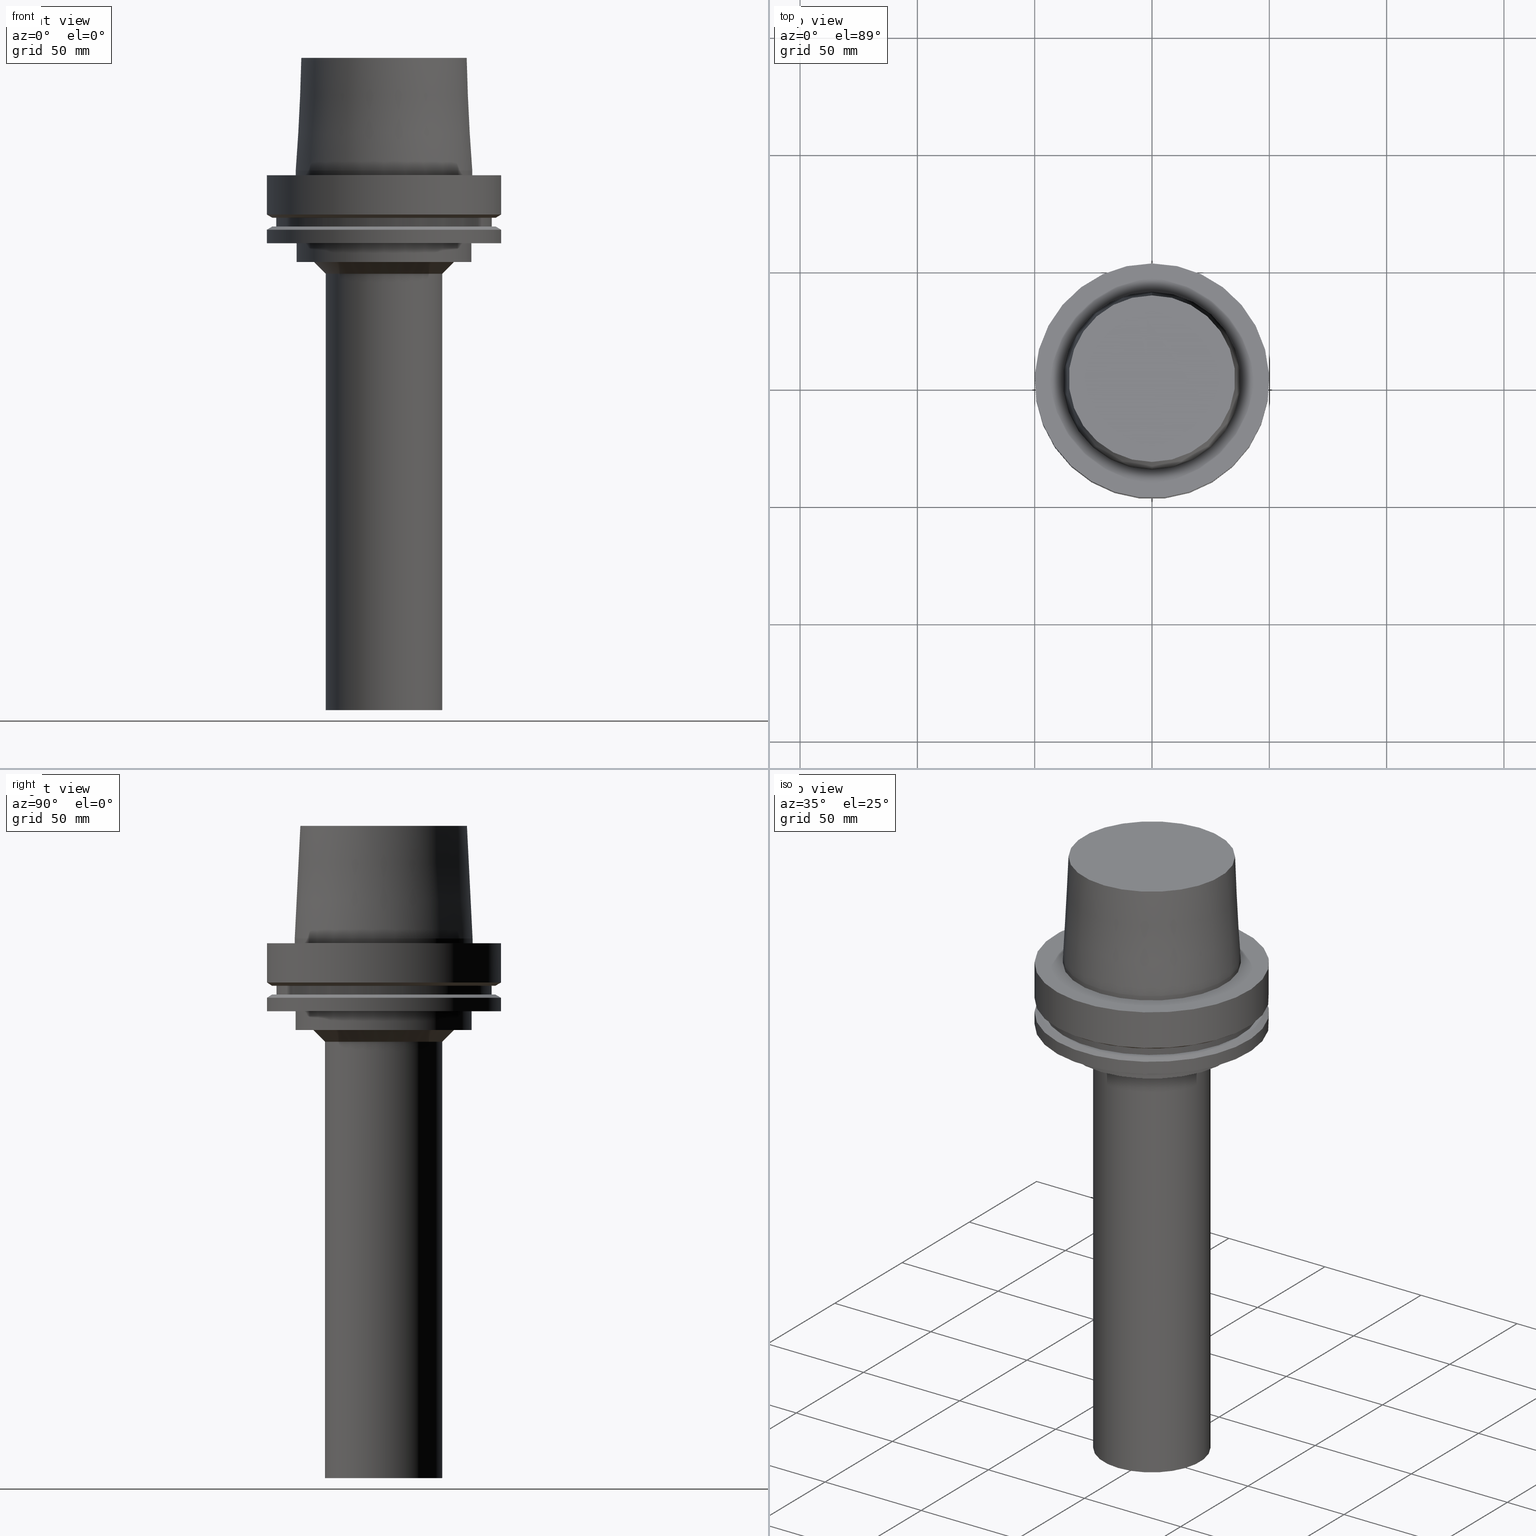
[diagram: canonical four-view strip — front | top / right | iso, engineering-drawing reading convention]
A machine part, canonical four-view strip (front | top / right | iso — engineering-drawing reading convention). The complete STEP part file that produces these views, byte-faithful:
ISO-10303-21;
HEADER;
FILE_DESCRIPTION((''),'1');
FILE_NAME('W:/Translate/00_BIG-HP\X2\FF71FF6FFF8CFF9F\X0\2013/HSK-A100-CK5-228.stp','2013-11-15T06:52:27',(''),(''),'Spatial Interop R18','Kubotek KeyCreator V8.5.1 (14335)',' ');
FILE_SCHEMA(('CONFIG_CONTROL_DESIGN'));
ENDSEC;
DATA;
#1=DESIGN_CONTEXT('',#27,'design');
#2=APPLICATION_PROTOCOL_DEFINITION('INTERNATIONAL STANDARD','config_control_design',1994,#27);
#3=PRODUCT_CATEGORY_RELATIONSHIP('NONE','NONE',#28,#29);
#4=DATE_AND_TIME(#30,#31);
#5=DATE_TIME_ROLE('creation_date');
#6=DATE_TIME_ROLE('classification_date');
#7=PERSON_AND_ORGANIZATION_ROLE('creator');
#8=PERSON_AND_ORGANIZATION_ROLE('design_supplier');
#9=PERSON_AND_ORGANIZATION_ROLE('classification_officer');
#10=PERSON_AND_ORGANIZATION_ROLE('design_owner');
#11=APPROVAL_PERSON_ORGANIZATION(#32,#33,#34);
#12=APPROVAL_DATE_TIME(#4,#33);
#13=CC_DESIGN_APPROVAL(#33,(#35,#36,#37));
#14=CC_DESIGN_DATE_AND_TIME_ASSIGNMENT(#4,#5,(#37));
#15=CC_DESIGN_DATE_AND_TIME_ASSIGNMENT(#4,#6,(#35));
#16=CC_DESIGN_PERSON_AND_ORGANIZATION_ASSIGNMENT(#32,#10,(#38));
#17=CC_DESIGN_PERSON_AND_ORGANIZATION_ASSIGNMENT(#32,#7,(#37));
#18=CC_DESIGN_PERSON_AND_ORGANIZATION_ASSIGNMENT(#32,#7,(#36));
#19=CC_DESIGN_PERSON_AND_ORGANIZATION_ASSIGNMENT(#32,#8,(#36));
#20=CC_DESIGN_SECURITY_CLASSIFICATION(#35,(#36));
#21=CC_DESIGN_PERSON_AND_ORGANIZATION_ASSIGNMENT(#32,#9,(#35));
#22=SHAPE_DEFINITION_REPRESENTATION(#39,#40);
#23= (GEOMETRIC_REPRESENTATION_CONTEXT(3)GLOBAL_UNCERTAINTY_ASSIGNED_CONTEXT((#43))GLOBAL_UNIT_ASSIGNED_CONTEXT((#45,#46,#47))REPRESENTATION_CONTEXT('NONE','WORKSPACE'));
#27=APPLICATION_CONTEXT('CONFIGURATION CONTROLLED 3D DESIGNS OF MECHANICAL PARTS AND ASSEMBLIES');
#28=PRODUCT_CATEGORY('part','NONE');
#29=PRODUCT_RELATED_PRODUCT_CATEGORY('detail',' ',(#38));
#30=CALENDAR_DATE(2013,15,10);
#31=LOCAL_TIME(15,52,27.0,#49);
#32=PERSON_AND_ORGANIZATION(#50,#51);
#33=APPROVAL(#52,'SOLID MODEL');
#34=APPROVAL_ROLE('APPROVED');
#35=SECURITY_CLASSIFICATION('','',#53);
#36=PRODUCT_DEFINITION_FORMATION_WITH_SPECIFIED_SOURCE(' ','NONE',#38,.NOT_KNOWN.);
#37=PRODUCT_DEFINITION('NONE','NONE',#36,#1);
#38=PRODUCT('1','1','PART-1-DESC',(#54));
#39=PRODUCT_DEFINITION_SHAPE('NONE','NONE',#37);
#40=ADVANCED_BREP_SHAPE_REPRESENTATION('1',(#55,#56),#23);
#43=UNCERTAINTY_MEASURE_WITH_UNIT(LENGTH_MEASURE(1.0E-006),#45,'','');
#45= (CONVERSION_BASED_UNIT('MILLIMETRE',#59)LENGTH_UNIT()NAMED_UNIT(#62));
#46= (NAMED_UNIT(#64)PLANE_ANGLE_UNIT()SI_UNIT($,.RADIAN.));
#47= (NAMED_UNIT(#64)SOLID_ANGLE_UNIT()SI_UNIT($,.STERADIAN.));
#49=COORDINATED_UNIVERSAL_TIME_OFFSET(9,0,.AHEAD.);
#50=PERSON('','UNSPECIFIED',$,$,$,$);
#51=ORGANIZATION('UNSPECIFIED','UNSPECIFIED','UNSPECIFIED');
#52=APPROVAL_STATUS('approved');
#53=SECURITY_CLASSIFICATION_LEVEL('unclassified');
#54=MECHANICAL_CONTEXT('',#27,'mechanical');
#55=MANIFOLD_SOLID_BREP('1',#70);
#56=AXIS2_PLACEMENT_3D('',#71,#72,#73);
#59=LENGTH_MEASURE_WITH_UNIT(LENGTH_MEASURE(1.0),#74);
#62=DIMENSIONAL_EXPONENTS(1.0,0.0,0.0,0.0,0.0,0.0,0.0);
#64=DIMENSIONAL_EXPONENTS(0.0,0.0,0.0,0.0,0.0,0.0,0.0);
#70=CLOSED_SHELL('',(#75,#76,#77,#78,#79,#80,#81,#82,#83,#84,#85,#86,#87,#88,#89,#90,#91));
#71=CARTESIAN_POINT('',(0.0,0.0,0.0));
#72=DIRECTION('',(0.0,0.0,1.0));
#73=DIRECTION('',(1.0,0.0,0.0));
#74= (NAMED_UNIT(#62)LENGTH_UNIT()SI_UNIT(.MILLI.,.METRE.));
#75=ADVANCED_FACE('',(#93),#94,.T.);
#76=ADVANCED_FACE('',(#95,#96),#97,.T.);
#77=ADVANCED_FACE('',(#98,#99),#100,.T.);
#78=ADVANCED_FACE('',(#101,#102),#103,.T.);
#79=ADVANCED_FACE('',(#104,#105),#106,.T.);
#80=ADVANCED_FACE('',(#107,#108),#109,.T.);
#81=ADVANCED_FACE('',(#110,#111),#112,.T.);
#82=ADVANCED_FACE('',(#113,#114),#115,.T.);
#83=ADVANCED_FACE('',(#116,#117),#118,.T.);
#84=ADVANCED_FACE('',(#119,#120),#121,.T.);
#85=ADVANCED_FACE('',(#122,#123),#124,.T.);
#86=ADVANCED_FACE('',(#125,#126),#127,.T.);
#87=ADVANCED_FACE('',(#128,#129),#130,.T.);
#88=ADVANCED_FACE('',(#131,#132),#133,.T.);
#89=ADVANCED_FACE('',(#134,#135),#136,.T.);
#90=ADVANCED_FACE('',(#137,#138),#139,.T.);
#91=ADVANCED_FACE('',(#140),#141,.T.);
#93=FACE_OUTER_BOUND('',#142,.T.);
#94=PLANE('',#143);
#95=FACE_BOUND('',#144,.T.);
#96=FACE_BOUND('',#145,.T.);
#97=CONICAL_SURFACE('',#146,36.7000000007809,0.0499583956894865);
#98=FACE_BOUND('',#147,.T.);
#99=FACE_BOUND('',#148,.T.);
#100=CYLINDRICAL_SURFACE('',#149,37.9);
#101=FACE_OUTER_BOUND('',#150,.T.);
#102=FACE_BOUND('',#151,.T.);
#103=PLANE('',#152);
#104=FACE_BOUND('',#153,.T.);
#105=FACE_BOUND('',#154,.T.);
#106=CYLINDRICAL_SURFACE('',#155,50.0);
#107=FACE_BOUND('',#156,.T.);
#108=FACE_BOUND('',#157,.T.);
#109=CONICAL_SURFACE('',#158,48.81129763,1.04719755328239);
#110=FACE_BOUND('',#159,.T.);
#111=FACE_OUTER_BOUND('',#160,.T.);
#112=PLANE('',#161);
#113=FACE_BOUND('',#162,.T.);
#114=FACE_BOUND('',#163,.T.);
#115=CYLINDRICAL_SURFACE('',#164,46.0);
#116=FACE_OUTER_BOUND('',#165,.T.);
#117=FACE_BOUND('',#166,.T.);
#118=PLANE('',#167);
#119=FACE_BOUND('',#168,.T.);
#120=FACE_BOUND('',#169,.T.);
#121=CONICAL_SURFACE('',#170,48.81129763,1.04719755328239);
#122=FACE_BOUND('',#171,.T.);
#123=FACE_BOUND('',#172,.T.);
#124=CYLINDRICAL_SURFACE('',#173,50.0);
#125=FACE_BOUND('',#174,.T.);
#126=FACE_OUTER_BOUND('',#175,.T.);
#127=PLANE('',#176);
#128=FACE_BOUND('',#177,.T.);
#129=FACE_BOUND('',#178,.T.);
#130=CYLINDRICAL_SURFACE('',#179,37.5000000000077);
#131=FACE_BOUND('',#180,.T.);
#132=FACE_OUTER_BOUND('',#181,.T.);
#133=PLANE('',#182);
#134=FACE_BOUND('',#183,.T.);
#135=FACE_BOUND('',#184,.T.);
#136=CONICAL_SURFACE('',#185,27.5,0.785398163397448);
#137=FACE_BOUND('',#186,.T.);
#138=FACE_BOUND('',#187,.T.);
#139=CYLINDRICAL_SURFACE('',#188,25.0);
#140=FACE_OUTER_BOUND('',#189,.T.);
#141=PLANE('',#190);
#142=EDGE_LOOP('',(#191));
#143=AXIS2_PLACEMENT_3D('',#192,#193,#194);
#144=EDGE_LOOP('',(#195));
#145=EDGE_LOOP('',(#196));
#146=AXIS2_PLACEMENT_3D('',#197,#198,#199);
#147=EDGE_LOOP('',(#200));
#148=EDGE_LOOP('',(#201));
#149=AXIS2_PLACEMENT_3D('',#202,#203,#204);
#150=EDGE_LOOP('',(#205));
#151=EDGE_LOOP('',(#206));
#152=AXIS2_PLACEMENT_3D('',#207,#208,#209);
#153=EDGE_LOOP('',(#210));
#154=EDGE_LOOP('',(#211));
#155=AXIS2_PLACEMENT_3D('',#212,#213,#214);
#156=EDGE_LOOP('',(#215));
#157=EDGE_LOOP('',(#216));
#158=AXIS2_PLACEMENT_3D('',#217,#218,#219);
#159=EDGE_LOOP('',(#220));
#160=EDGE_LOOP('',(#221));
#161=AXIS2_PLACEMENT_3D('',#222,#223,#224);
#162=EDGE_LOOP('',(#225));
#163=EDGE_LOOP('',(#226));
#164=AXIS2_PLACEMENT_3D('',#227,#228,#229);
#165=EDGE_LOOP('',(#230));
#166=EDGE_LOOP('',(#231));
#167=AXIS2_PLACEMENT_3D('',#232,#233,#234);
#168=EDGE_LOOP('',(#235));
#169=EDGE_LOOP('',(#236));
#170=AXIS2_PLACEMENT_3D('',#237,#238,#239);
#171=EDGE_LOOP('',(#240));
#172=EDGE_LOOP('',(#241));
#173=AXIS2_PLACEMENT_3D('',#242,#243,#244);
#174=EDGE_LOOP('',(#245));
#175=EDGE_LOOP('',(#246));
#176=AXIS2_PLACEMENT_3D('',#247,#248,#249);
#177=EDGE_LOOP('',(#250));
#178=EDGE_LOOP('',(#251));
#179=AXIS2_PLACEMENT_3D('',#252,#253,#254);
#180=EDGE_LOOP('',(#255));
#181=EDGE_LOOP('',(#256));
#182=AXIS2_PLACEMENT_3D('',#257,#258,#259);
#183=EDGE_LOOP('',(#260));
#184=EDGE_LOOP('',(#261));
#185=AXIS2_PLACEMENT_3D('',#262,#263,#264);
#186=EDGE_LOOP('',(#265));
#187=EDGE_LOOP('',(#266));
#188=AXIS2_PLACEMENT_3D('',#267,#268,#269);
#189=EDGE_LOOP('',(#270));
#190=AXIS2_PLACEMENT_3D('',#271,#272,#273);
#191=ORIENTED_EDGE('',*,*,#274,.F.);
#192=CARTESIAN_POINT('',(-3.06161699786838E-015,17.7500000007809,50.0));
#193=DIRECTION('',(-6.12323399573677E-017,-1.22464679914735E-016,1.0));
#194=DIRECTION('',(1.23259516440783E-032,-1.0,-1.22464679914735E-016));
#195=ORIENTED_EDGE('',*,*,#275,.F.);
#196=ORIENTED_EDGE('',*,*,#274,.T.);
#197=CARTESIAN_POINT('',(-1.59204083889156E-015,-3.18408167778312E-015,26.0));
#198=DIRECTION('',(6.12323399573677E-017,1.22464679914735E-016,-1.0));
#199=DIRECTION('',(-1.23259516440783E-032,1.0,1.22464679914735E-016));
#200=ORIENTED_EDGE('',*,*,#276,.F.);
#201=ORIENTED_EDGE('',*,*,#275,.T.);
#202=CARTESIAN_POINT('',(-6.12323399573677E-017,-1.22464679914735E-016,1.0));
#203=DIRECTION('',(-6.12323399573677E-017,-1.22464679914735E-016,1.0));
#204=DIRECTION('',(-1.23259516440783E-032,1.0,1.22464679914735E-016));
#205=ORIENTED_EDGE('',*,*,#277,.F.);
#206=ORIENTED_EDGE('',*,*,#276,.T.);
#207=CARTESIAN_POINT('',(-5.41725574757242E-031,43.95,5.38232268225262E-015));
#208=DIRECTION('',(-6.12323399573677E-017,-1.22464679914735E-016,1.0));
#209=DIRECTION('',(1.23259516440783E-032,-1.0,-1.22464679914735E-016));
#210=ORIENTED_EDGE('',*,*,#278,.F.);
#211=ORIENTED_EDGE('',*,*,#277,.T.);
#212=CARTESIAN_POINT('',(5.12894471071548E-016,1.0257889421431E-015,-8.37620236999999));
#213=DIRECTION('',(-6.12323399573677E-017,-1.22464679914735E-016,1.0));
#214=DIRECTION('',(-1.23259516440783E-032,1.0,1.22464679914735E-016));
#215=ORIENTED_EDGE('',*,*,#279,.F.);
#216=ORIENTED_EDGE('',*,*,#278,.T.);
#217=CARTESIAN_POINT('',(1.06781255193519E-015,2.13562510387038E-015,-17.43870237));
#218=DIRECTION('',(-6.12323399573677E-017,-1.22464679914735E-016,1.0));
#219=DIRECTION('',(-1.23259516440783E-032,1.0,1.22464679914735E-016));
#220=ORIENTED_EDGE('',*,*,#280,.F.);
#221=ORIENTED_EDGE('',*,*,#279,.T.);
#222=CARTESIAN_POINT('',(1.10983616172729E-015,46.81129763,-18.125));
#223=DIRECTION('',(6.12323399573677E-017,1.22464679914735E-016,-1.0));
#224=DIRECTION('',(-1.23259516440783E-032,1.0,1.22464679914735E-016));
#225=ORIENTED_EDGE('',*,*,#281,.F.);
#226=ORIENTED_EDGE('',*,*,#280,.T.);
#227=CARTESIAN_POINT('',(1.22464679914735E-015,2.44929359829471E-015,-20.0));
#228=DIRECTION('',(-6.12323399573677E-017,-1.22464679914735E-016,1.0));
#229=DIRECTION('',(-1.23259516440783E-032,1.0,1.22464679914735E-016));
#230=ORIENTED_EDGE('',*,*,#282,.F.);
#231=ORIENTED_EDGE('',*,*,#281,.T.);
#232=CARTESIAN_POINT('',(1.33945743656742E-015,46.81129763,-21.875));
#233=DIRECTION('',(-6.12323399573677E-017,-1.22464679914735E-016,1.0));
#234=DIRECTION('',(1.23259516440783E-032,-1.0,-1.22464679914735E-016));
#235=ORIENTED_EDGE('',*,*,#283,.F.);
#236=ORIENTED_EDGE('',*,*,#282,.T.);
#237=CARTESIAN_POINT('',(1.38148104635951E-015,2.76296209271903E-015,-22.56129763));
#238=DIRECTION('',(6.12323399573677E-017,1.22464679914735E-016,-1.0));
#239=DIRECTION('',(-1.23259516440783E-032,1.0,1.22464679914735E-016));
#240=ORIENTED_EDGE('',*,*,#284,.F.);
#241=ORIENTED_EDGE('',*,*,#283,.T.);
#242=CARTESIAN_POINT('',(1.59962125745764E-015,3.19924251491527E-015,-26.12379763));
#243=DIRECTION('',(-6.12323399573677E-017,-1.22464679914735E-016,1.0));
#244=DIRECTION('',(-1.23259516440783E-032,1.0,1.22464679914735E-016));
#245=ORIENTED_EDGE('',*,*,#285,.F.);
#246=ORIENTED_EDGE('',*,*,#284,.T.);
#247=CARTESIAN_POINT('',(1.77573785876366E-015,43.7499999999994,-29.0));
#248=DIRECTION('',(6.12323399573677E-017,1.22464679914735E-016,-1.0));
#249=DIRECTION('',(-1.23259516440783E-032,1.0,1.22464679914735E-016));
#250=ORIENTED_EDGE('',*,*,#286,.F.);
#251=ORIENTED_EDGE('',*,*,#285,.T.);
#252=CARTESIAN_POINT('',(2.02066721859313E-015,4.04133443718626E-015,-33.0));
#253=DIRECTION('',(-6.12323399573676E-017,-1.22464679914735E-016,1.0));
#254=DIRECTION('',(-1.23259516440783E-032,1.0,1.22464679914735E-016));
#255=ORIENTED_EDGE('',*,*,#287,.F.);
#256=ORIENTED_EDGE('',*,*,#286,.T.);
#257=CARTESIAN_POINT('',(2.2655965784226E-015,33.7500000000082,-37.0));
#258=DIRECTION('',(6.12323399573677E-017,6.75419688032773E-015,-1.0));
#259=DIRECTION('',(-4.18402432245989E-031,1.0,6.75419688032773E-015));
#260=ORIENTED_EDGE('',*,*,#288,.F.);
#261=ORIENTED_EDGE('',*,*,#287,.T.);
#262=CARTESIAN_POINT('',(2.41867742831602E-015,4.83735485663205E-015,-39.5));
#263=DIRECTION('',(-6.12323399573677E-017,-1.22464679914735E-016,1.0));
#264=DIRECTION('',(-1.23259516440783E-032,1.0,1.22464679914735E-016));
#265=ORIENTED_EDGE('',*,*,#289,.F.);
#266=ORIENTED_EDGE('',*,*,#288,.T.);
#267=CARTESIAN_POINT('',(8.26636589424463E-015,1.65327317884893E-014,-135.0));
#268=DIRECTION('',(-6.12323399573677E-017,-1.22464679914735E-016,1.0));
#269=DIRECTION('',(-1.23259516440783E-032,1.0,1.22464679914735E-016));
#270=ORIENTED_EDGE('',*,*,#289,.T.);
#271=CARTESIAN_POINT('',(1.39609735102798E-014,12.5,-228.0));
#272=DIRECTION('',(6.12323399573677E-017,1.22464679914735E-016,-1.0));
#273=DIRECTION('',(-1.23259516440783E-032,1.0,1.22464679914735E-016));
#274=EDGE_CURVE('',#290,#290,#291,.T.);
#275=EDGE_CURVE('',#292,#292,#293,.T.);
#276=EDGE_CURVE('',#294,#294,#295,.T.);
#277=EDGE_CURVE('',#296,#296,#297,.T.);
#278=EDGE_CURVE('',#298,#298,#299,.T.);
#279=EDGE_CURVE('',#300,#300,#301,.T.);
#280=EDGE_CURVE('',#302,#302,#303,.T.);
#281=EDGE_CURVE('',#304,#304,#305,.T.);
#282=EDGE_CURVE('',#306,#306,#307,.T.);
#283=EDGE_CURVE('',#308,#308,#309,.T.);
#284=EDGE_CURVE('',#310,#310,#311,.T.);
#285=EDGE_CURVE('',#312,#312,#313,.T.);
#286=EDGE_CURVE('',#314,#314,#315,.T.);
#287=EDGE_CURVE('',#316,#316,#317,.T.);
#288=EDGE_CURVE('',#318,#318,#319,.T.);
#289=EDGE_CURVE('',#320,#320,#321,.T.);
#290=VERTEX_POINT('',#322);
#291=CIRCLE('',#323,35.5000000015618);
#292=VERTEX_POINT('',#324);
#293=CIRCLE('',#325,37.9);
#294=VERTEX_POINT('',#326);
#295=CIRCLE('',#327,37.9);
#296=VERTEX_POINT('',#328);
#297=CIRCLE('',#329,50.0);
#298=VERTEX_POINT('',#330);
#299=CIRCLE('',#331,50.0);
#300=VERTEX_POINT('',#332);
#301=CIRCLE('',#333,47.62259526);
#302=VERTEX_POINT('',#334);
#303=CIRCLE('',#335,46.0);
#304=VERTEX_POINT('',#336);
#305=CIRCLE('',#337,46.0);
#306=VERTEX_POINT('',#338);
#307=CIRCLE('',#339,47.62259526);
#308=VERTEX_POINT('',#340);
#309=CIRCLE('',#341,50.0);
#310=VERTEX_POINT('',#342);
#311=CIRCLE('',#343,50.0);
#312=VERTEX_POINT('',#344);
#313=CIRCLE('',#345,37.4999999999988);
#314=VERTEX_POINT('',#346);
#315=CIRCLE('',#347,37.5000000000165);
#316=VERTEX_POINT('',#348);
#317=CIRCLE('',#349,30.0);
#318=VERTEX_POINT('',#350);
#319=CIRCLE('',#351,25.0);
#320=VERTEX_POINT('',#352);
#321=CIRCLE('',#353,25.0);
#322=CARTESIAN_POINT('',(-3.06161699786838E-015,35.5000000015618,50.0));
#323=AXIS2_PLACEMENT_3D('',#354,#355,#356);
#324=CARTESIAN_POINT('',(-1.22464679914736E-016,37.9,2.0));
#325=AXIS2_PLACEMENT_3D('',#357,#358,#359);
#326=CARTESIAN_POINT('',(-4.67153567310568E-031,37.9,4.64141136876847E-015));
#327=AXIS2_PLACEMENT_3D('',#360,#361,#362);
#328=CARTESIAN_POINT('',(-6.16297582203915E-031,50.0,6.12323399573676E-015));
#329=AXIS2_PLACEMENT_3D('',#363,#364,#365);
#330=CARTESIAN_POINT('',(1.0257889421431E-015,50.0,-16.75240474));
#331=AXIS2_PLACEMENT_3D('',#366,#367,#368);
#332=CARTESIAN_POINT('',(1.10983616172729E-015,47.62259526,-18.125));
#333=AXIS2_PLACEMENT_3D('',#369,#370,#371);
#334=CARTESIAN_POINT('',(1.10983616172729E-015,46.0,-18.125));
#335=AXIS2_PLACEMENT_3D('',#372,#373,#374);
#336=CARTESIAN_POINT('',(1.33945743656742E-015,46.0,-21.875));
#337=AXIS2_PLACEMENT_3D('',#375,#376,#377);
#338=CARTESIAN_POINT('',(1.33945743656742E-015,47.62259526,-21.875));
#339=AXIS2_PLACEMENT_3D('',#378,#379,#380);
#340=CARTESIAN_POINT('',(1.42350465615161E-015,50.0,-23.24759526));
#341=AXIS2_PLACEMENT_3D('',#381,#382,#383);
#342=CARTESIAN_POINT('',(1.77573785876366E-015,50.0,-29.0));
#343=AXIS2_PLACEMENT_3D('',#384,#385,#386);
#344=CARTESIAN_POINT('',(1.77573785876366E-015,37.4999999999988,-29.0));
#345=AXIS2_PLACEMENT_3D('',#387,#388,#389);
#346=CARTESIAN_POINT('',(2.2655965784226E-015,37.5000000000165,-37.0));
#347=AXIS2_PLACEMENT_3D('',#390,#391,#392);
#348=CARTESIAN_POINT('',(2.26559657842261E-015,30.0,-37.0));
#349=AXIS2_PLACEMENT_3D('',#393,#394,#395);
#350=CARTESIAN_POINT('',(2.57175827820944E-015,25.0,-42.0));
#351=AXIS2_PLACEMENT_3D('',#396,#397,#398);
#352=CARTESIAN_POINT('',(1.39609735102798E-014,25.0,-228.0));
#353=AXIS2_PLACEMENT_3D('',#399,#400,#401);
#354=CARTESIAN_POINT('',(-3.06161699786838E-015,-6.12323399573676E-015,50.0));
#355=DIRECTION('',(6.12323399573677E-017,1.22464679914735E-016,-1.0));
#356=DIRECTION('',(-1.23259516440783E-032,1.0,1.22464679914735E-016));
#357=CARTESIAN_POINT('',(-1.22464679914735E-016,-2.44929359829471E-016,2.0));
#358=DIRECTION('',(6.12323399573677E-017,1.22464679914735E-016,-1.0));
#359=DIRECTION('',(-1.23259516440783E-032,1.0,1.22464679914735E-016));
#360=CARTESIAN_POINT('',(0.0,0.0,0.0));
#361=DIRECTION('',(6.12323399573677E-017,1.22464679914735E-016,-1.0));
#362=DIRECTION('',(-1.23259516440783E-032,1.0,1.22464679914735E-016));
#363=CARTESIAN_POINT('',(0.0,0.0,0.0));
#364=DIRECTION('',(6.12323399573677E-017,1.22464679914735E-016,-1.0));
#365=DIRECTION('',(-1.23259516440783E-032,1.0,1.22464679914735E-016));
#366=CARTESIAN_POINT('',(1.0257889421431E-015,2.05157788428619E-015,-16.75240474));
#367=DIRECTION('',(6.12323399573677E-017,1.22464679914735E-016,-1.0));
#368=DIRECTION('',(-1.23259516440783E-032,1.0,1.22464679914735E-016));
#369=CARTESIAN_POINT('',(1.10983616172729E-015,2.21967232345458E-015,-18.125));
#370=DIRECTION('',(6.12323399573677E-017,1.22464679914735E-016,-1.0));
#371=DIRECTION('',(-1.23259516440783E-032,1.0,1.22464679914735E-016));
#372=CARTESIAN_POINT('',(1.10983616172729E-015,2.21967232345458E-015,-18.125));
#373=DIRECTION('',(6.12323399573677E-017,1.22464679914735E-016,-1.0));
#374=DIRECTION('',(-1.23259516440783E-032,1.0,1.22464679914735E-016));
#375=CARTESIAN_POINT('',(1.33945743656742E-015,2.67891487313483E-015,-21.875));
#376=DIRECTION('',(6.12323399573677E-017,1.22464679914735E-016,-1.0));
#377=DIRECTION('',(-1.23259516440783E-032,1.0,1.22464679914735E-016));
#378=CARTESIAN_POINT('',(1.33945743656742E-015,2.67891487313483E-015,-21.875));
#379=DIRECTION('',(6.12323399573677E-017,1.22464679914735E-016,-1.0));
#380=DIRECTION('',(-1.23259516440783E-032,1.0,1.22464679914735E-016));
#381=CARTESIAN_POINT('',(1.42350465615161E-015,2.84700931230322E-015,-23.24759526));
#382=DIRECTION('',(6.12323399573677E-017,1.22464679914735E-016,-1.0));
#383=DIRECTION('',(-1.23259516440783E-032,1.0,1.22464679914735E-016));
#384=CARTESIAN_POINT('',(1.77573785876366E-015,3.55147571752732E-015,-29.0));
#385=DIRECTION('',(6.12323399573677E-017,1.22464679914735E-016,-1.0));
#386=DIRECTION('',(-1.23259516440783E-032,1.0,1.22464679914735E-016));
#387=CARTESIAN_POINT('',(1.77573785876366E-015,3.55147571752732E-015,-29.0));
#388=DIRECTION('',(6.12323399573677E-017,1.22464679914735E-016,-1.0));
#389=DIRECTION('',(-1.23259516440783E-032,1.0,1.22464679914735E-016));
#390=CARTESIAN_POINT('',(2.2655965784226E-015,4.53119315684521E-015,-37.0));
#391=DIRECTION('',(6.12323399573677E-017,1.22464679914735E-016,-1.0));
#392=DIRECTION('',(-1.23259516440783E-032,1.0,1.22464679914735E-016));
#393=CARTESIAN_POINT('',(2.26559657842261E-015,4.53119315684521E-015,-37.0000000000001));
#394=DIRECTION('',(6.12323399573677E-017,1.22464679914735E-016,-1.0));
#395=DIRECTION('',(-1.23259516440783E-032,1.0,1.22464679914735E-016));
#396=CARTESIAN_POINT('',(2.57175827820944E-015,5.14351655641888E-015,-42.0));
#397=DIRECTION('',(6.12323399573677E-017,1.22464679914735E-016,-1.0));
#398=DIRECTION('',(-1.23259516440783E-032,1.0,1.22464679914735E-016));
#399=CARTESIAN_POINT('',(1.39609735102798E-014,2.79219470205596E-014,-228.0));
#400=DIRECTION('',(6.12323399573677E-017,1.22464679914735E-016,-1.0));
#401=DIRECTION('',(-1.23259516440783E-032,1.0,1.22464679914735E-016));
ENDSEC;
END-ISO-10303-21;
